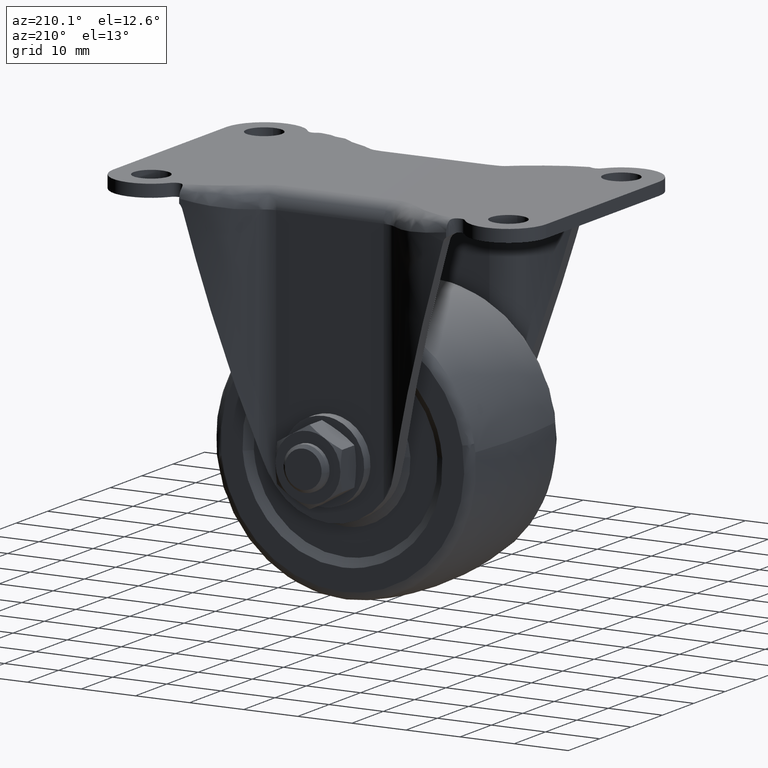
[diagram: clean part render]
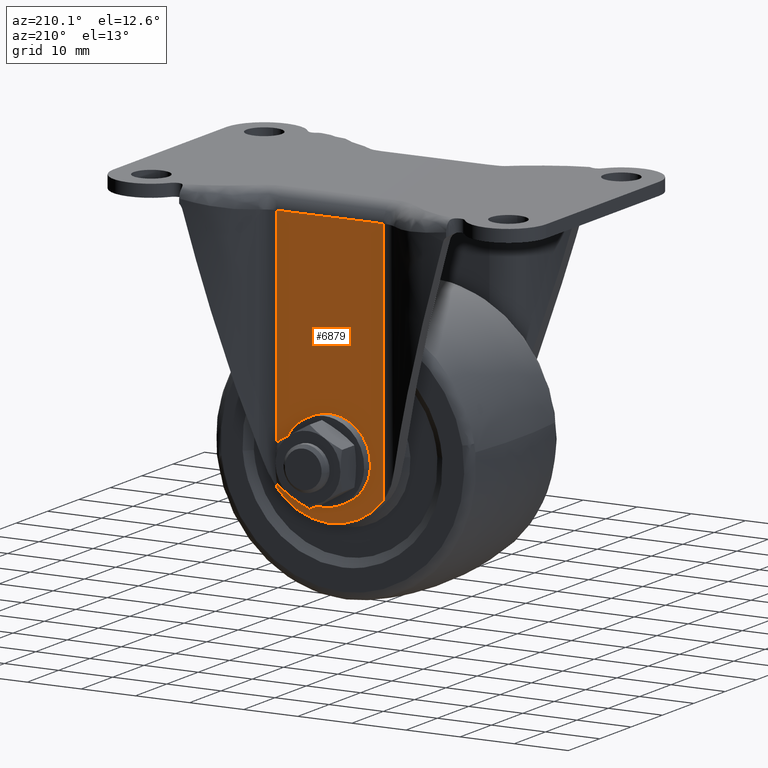
[diagram: same view with one face highlighted and labeled with its STEP entity id]
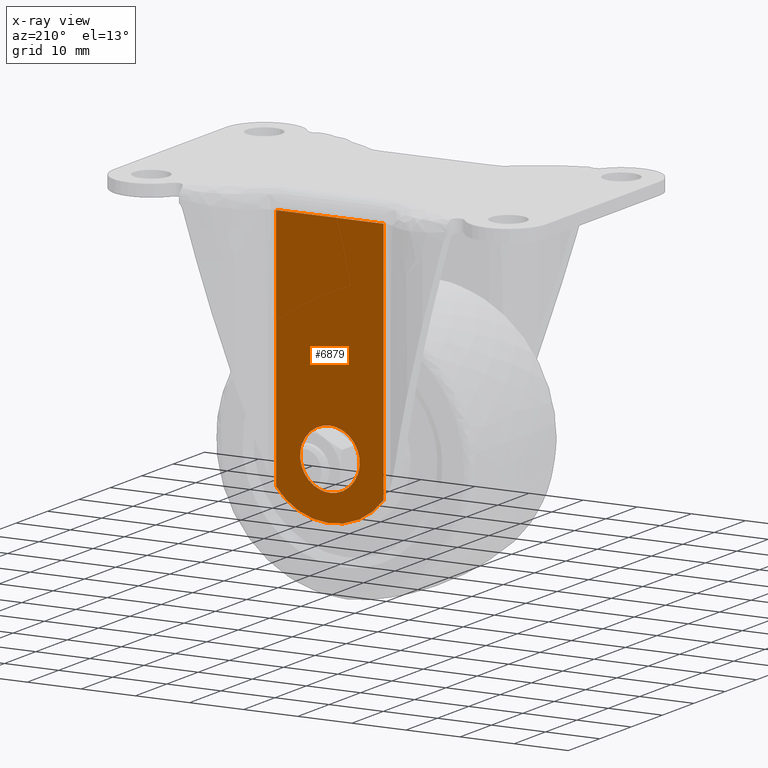
[diagram: x-ray of the same camera — body ghosted, the highlighted face saturated]
A machine part, auxiliary view. The second image highlights one B-rep face of the part: STEP entity #6879.
The next image is the same camera in x-ray: the body ghosted, the highlighted face saturated — about 0% of this face is hidden behind the body in this view.
In plain terms, the highlighted face is a freeform B-spline surface patch.
Its self-contained STEP definition (entity closure, byte-faithful):
#2350=CARTESIAN_POINT('',(5.461553553201343,18.0,-42.350821453360098));
#2351=VERTEX_POINT('',#2350);
#2357=CARTESIAN_POINT('',(0.0,18.0,-48.499999999999993));
#2358=VERTEX_POINT('',#2357);
#2359=CARTESIAN_POINT('',(5.461553553201343,18.0,-42.350821453360098));
#2360=CARTESIAN_POINT('',(5.500000000000002,18.0,-42.674272265405349));
#2361=CARTESIAN_POINT('',(5.500000000000000,18.0,-43.0));
#2362=CARTESIAN_POINT('',(5.500000000000001,18.000000000000007,-48.500000000000007));
#2363=CARTESIAN_POINT('',(0.0,18.0,-48.499999999999993));
#2371=(BOUNDED_CURVE()B_SPLINE_CURVE(2,(#2359,#2360,#2361,#2362,#2363),.UNSPECIFIED.,.F.,.U.)B_SPLINE_CURVE_WITH_KNOTS((3,2,3),(0.229562775034887,0.250000000000000,0.500000000000000),.UNSPECIFIED.)CURVE()GEOMETRIC_REPRESENTATION_ITEM()RATIONAL_B_SPLINE_CURVE((0.956027345178793,0.976056301585414,1.0,0.707106781186548,1.0))REPRESENTATION_ITEM(''));
#2372=EDGE_CURVE('',#2351,#2358,#2371,.T.);
#2374=CARTESIAN_POINT('',(-5.489741391318212,18.0,-43.335766967475337));
#2375=VERTEX_POINT('',#2374);
#2376=CARTESIAN_POINT('',(0.0,18.0,-48.499999999999993));
#2377=CARTESIAN_POINT('',(-5.173883367917849,18.0,-48.499999999999993));
#2378=CARTESIAN_POINT('',(-5.489741391318212,17.999999999999996,-43.335766967475337));
#2386=(BOUNDED_CURVE()B_SPLINE_CURVE(2,(#2376,#2377,#2378),.UNSPECIFIED.,.F.,.U.)B_SPLINE_CURVE_WITH_KNOTS((3,3),(0.500000000000000,0.739332962239855),.UNSPECIFIED.)CURVE()GEOMETRIC_REPRESENTATION_ITEM()RATIONAL_B_SPLINE_CURVE((1.0,0.719603993285641,0.976072041668673))REPRESENTATION_ITEM(''));
#2387=EDGE_CURVE('',#2358,#2375,#2386,.T.);
#2465=CARTESIAN_POINT('',(0.0,18.0,-37.500000000000000));
#2466=VERTEX_POINT('',#2465);
#2467=CARTESIAN_POINT('',(-5.489741391318212,18.0,-43.335766967475337));
#2468=CARTESIAN_POINT('',(-5.500000000000000,18.000000000000004,-43.168040198175952));
#2469=CARTESIAN_POINT('',(-5.500000000000000,18.0,-43.0));
#2470=CARTESIAN_POINT('',(-5.500000000000001,18.000000000000007,-37.499999999999993));
#2471=CARTESIAN_POINT('',(0.0,18.0,-37.500000000000000));
#2479=(BOUNDED_CURVE()B_SPLINE_CURVE(2,(#2467,#2468,#2469,#2470,#2471),.UNSPECIFIED.,.F.,.U.)B_SPLINE_CURVE_WITH_KNOTS((3,2,3),(0.739332962239855,0.750000000000000,1.0),.UNSPECIFIED.)CURVE()GEOMETRIC_REPRESENTATION_ITEM()RATIONAL_B_SPLINE_CURVE((0.976072041668673,0.987502787900906,1.0,0.707106781186548,1.0))REPRESENTATION_ITEM(''));
#2480=EDGE_CURVE('',#2375,#2466,#2479,.T.);
#2482=CARTESIAN_POINT('',(0.0,18.0,-37.500000000000000));
#2483=CARTESIAN_POINT('',(4.884968669362206,18.000000000000004,-37.500000000000007));
#2484=CARTESIAN_POINT('',(5.461553553201343,18.0,-42.350821453360098));
#2492=(BOUNDED_CURVE()B_SPLINE_CURVE(2,(#2482,#2483,#2484),.UNSPECIFIED.,.F.,.U.)B_SPLINE_CURVE_WITH_KNOTS((3,3),(0.0,0.229562775034887),.UNSPECIFIED.)CURVE()GEOMETRIC_REPRESENTATION_ITEM()RATIONAL_B_SPLINE_CURVE((1.0,0.731050479601134,0.956027345178793))REPRESENTATION_ITEM(''));
#2493=EDGE_CURVE('',#2466,#2351,#2492,.T.);
#3760=CARTESIAN_POINT('',(-9.928238000000000,18.0,-3.300000000000000));
#3761=VERTEX_POINT('',#3760);
#3821=CARTESIAN_POINT('',(9.928238000000000,18.0,-3.300000000000000));
#3822=VERTEX_POINT('',#3821);
#3836=CARTESIAN_POINT('',(-9.928238000000000,18.0,-3.300000000000000));
#3837=CARTESIAN_POINT('',(9.928238000000000,18.0,-3.300000000000000));
#3838=QUASI_UNIFORM_CURVE('',1,(#3836,#3837),.UNSPECIFIED.,.F.,.U.);
#3839=EDGE_CURVE('',#3761,#3822,#3838,.T.);
#5750=CARTESIAN_POINT('',(-9.928238000000000,18.0,-48.594740267560503));
#5751=VERTEX_POINT('',#5750);
#5752=CARTESIAN_POINT('',(9.928238000000000,18.0,-48.594741574811991));
#5753=VERTEX_POINT('',#5752);
#5754=CARTESIAN_POINT('',(-9.928238000000002,18.0,-48.594740267560503));
#5755=CARTESIAN_POINT('',(-6.175893570873662,18.000000000000004,-53.499999556844209));
#5756=CARTESIAN_POINT('',(-0.000000322937825,18.0,-53.499999963434270));
#5757=CARTESIAN_POINT('',(6.175892924998020,18.000000000000004,-53.500000370024338));
#5758=CARTESIAN_POINT('',(9.928238000000025,18.0,-48.594741574812012));
#5766=(BOUNDED_CURVE()B_SPLINE_CURVE(2,(#5754,#5755,#5756,#5757,#5758),.UNSPECIFIED.,.F.,.U.)B_SPLINE_CURVE_WITH_KNOTS((3,2,3),(0.0,0.500000000000000,1.0),.UNSPECIFIED.)CURVE()GEOMETRIC_REPRESENTATION_ITEM()RATIONAL_B_SPLINE_CURVE((1.0,0.896543160316378,1.0,0.896543160316378,1.0))REPRESENTATION_ITEM(''));
#5767=EDGE_CURVE('',#5751,#5753,#5766,.T.);
#6846=CARTESIAN_POINT('',(9.928238000000000,18.0,-48.594741574811991));
#6847=CARTESIAN_POINT('',(9.928238000000000,18.0,-3.300000000000000));
#6848=QUASI_UNIFORM_CURVE('',1,(#6846,#6847),.UNSPECIFIED.,.F.,.U.);
#6849=EDGE_CURVE('',#5753,#3822,#6848,.T.);
#6858=CARTESIAN_POINT('',(-10.920068937714300,18.0,-0.792510099123800));
#6859=CARTESIAN_POINT('',(-10.920068937714300,18.0,-56.007491210779392));
#6860=CARTESIAN_POINT('',(10.920069470306490,18.0,-0.792510099123800));
#6861=CARTESIAN_POINT('',(10.920069470306490,18.0,-56.007491210779392));
#6862=B_SPLINE_SURFACE_WITH_KNOTS('',1,1,((#6858,#6860),(#6859,#6861)),.UNSPECIFIED.,.F.,.F.,.U.,(2,2),(2,2),(0.0,55.214981111655590),(0.0,21.840138408020788),.UNSPECIFIED.);
#6863=CARTESIAN_POINT('',(-9.928238000000000,18.0,-48.594740267560503));
#6864=CARTESIAN_POINT('',(-9.928238000000000,18.0,-3.300000000000000));
#6865=QUASI_UNIFORM_CURVE('',1,(#6863,#6864),.UNSPECIFIED.,.F.,.U.);
#6866=EDGE_CURVE('',#5751,#3761,#6865,.T.);
#6867=ORIENTED_EDGE('',*,*,#6866,.T.);
#6868=ORIENTED_EDGE('',*,*,#3839,.T.);
#6869=ORIENTED_EDGE('',*,*,#6849,.F.);
#6870=ORIENTED_EDGE('',*,*,#5767,.F.);
#6871=EDGE_LOOP('',(#6867,#6868,#6869,#6870));
#6872=FACE_OUTER_BOUND('',#6871,.T.);
#6873=ORIENTED_EDGE('',*,*,#2387,.F.);
#6874=ORIENTED_EDGE('',*,*,#2372,.F.);
#6875=ORIENTED_EDGE('',*,*,#2493,.F.);
#6876=ORIENTED_EDGE('',*,*,#2480,.F.);
#6877=EDGE_LOOP('',(#6873,#6874,#6875,#6876));
#6878=FACE_BOUND('',#6877,.T.);
#6879=ADVANCED_FACE('',(#6872,#6878),#6862,.F.);